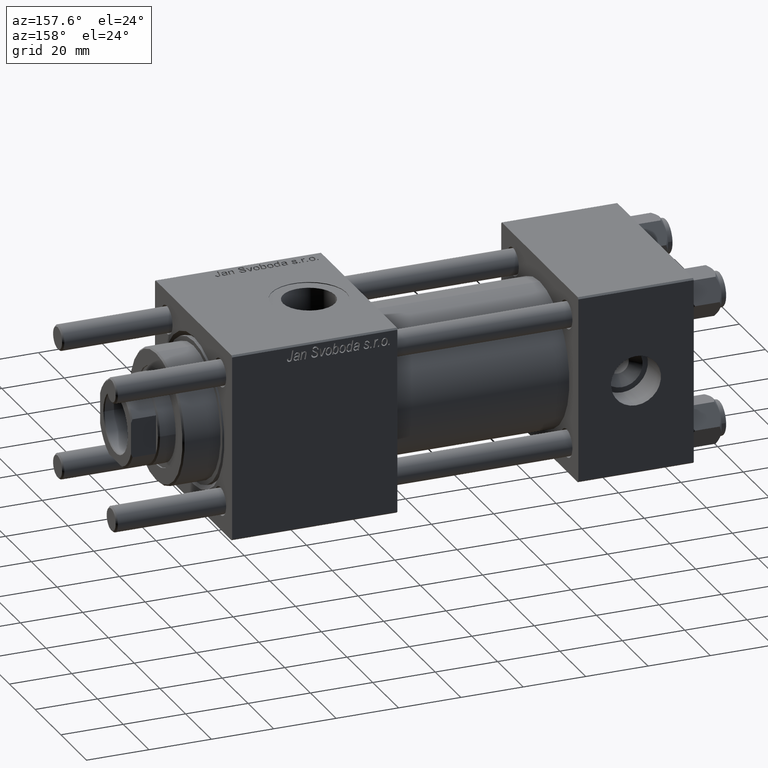
[diagram: clean part render]
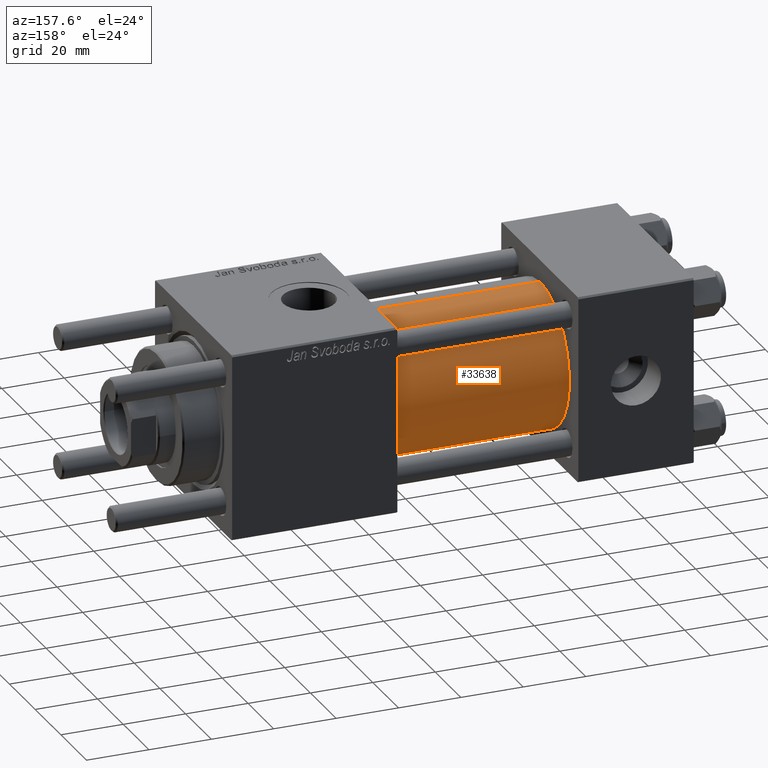
[diagram: same view with one face highlighted and labeled with its STEP entity id]
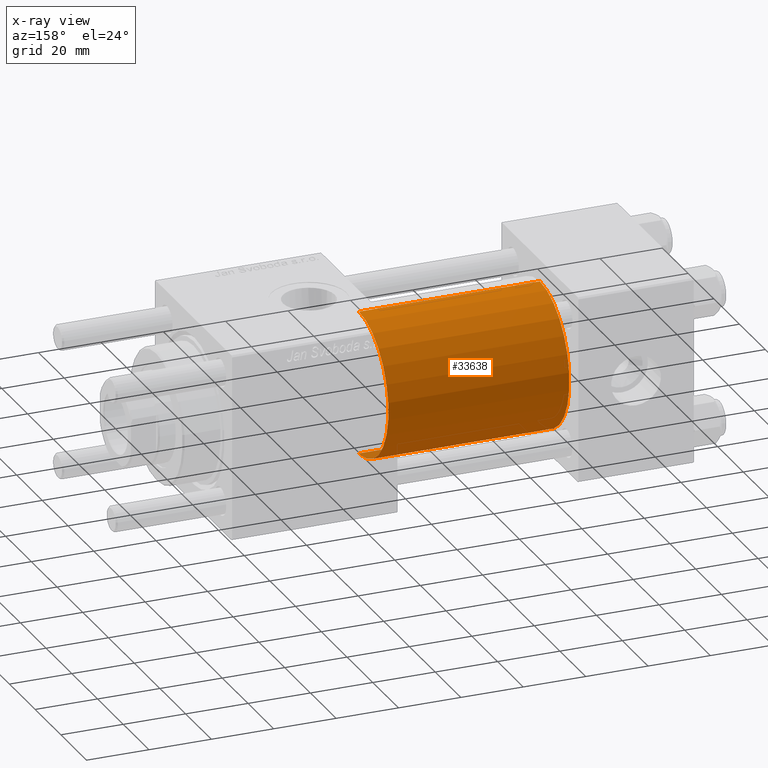
[diagram: x-ray of the same camera — body ghosted, the highlighted face saturated]
A machine part, auxiliary view. The second image highlights one B-rep face of the part: STEP entity #33638.
The next image is the same camera in x-ray: the body ghosted, the highlighted face saturated — about 0% of this face is hidden behind the body in this view.
In plain terms, the highlighted cylindrical surface (partial cylindrical patch) has radius 23 mm, axis along (-1, -0, -0).
Its self-contained STEP definition (entity closure, byte-faithful):
#918 = VERTEX_POINT ( 'NONE', #57165 ) ;
#1982 = VERTEX_POINT ( 'NONE', #16419 ) ;
#2223 = EDGE_CURVE ( 'NONE', #918, #1982, #49312, .T. ) ;
#6777 = CARTESIAN_POINT ( 'NONE',  ( 95.00000000000000000, -2.602085213965210642E-15, 0.000000000000000000 ) ) ;
#7200 = CIRCLE ( 'NONE', #28154, 23.00000000000000000 ) ;
#7484 = VERTEX_POINT ( 'NONE', #31029 ) ;
#11144 = DIRECTION ( 'NONE',  ( -1.000000000000000000, -0.000000000000000000, -0.000000000000000000 ) ) ;
#13088 = VERTEX_POINT ( 'NONE', #50799 ) ;
#15423 = AXIS2_PLACEMENT_3D ( 'NONE', #6777, #20183, #15999 ) ;
#15999 = DIRECTION ( 'NONE',  ( 0.000000000000000000, 0.000000000000000000, 1.000000000000000000 ) ) ;
#16419 = CARTESIAN_POINT ( 'NONE',  ( 37.00000000000000000, -2.602085213965210642E-15, 23.00000000000000000 ) ) ;
#17366 = ORIENTED_EDGE ( 'NONE', *, *, #36380, .T. ) ;
#20183 = DIRECTION ( 'NONE',  ( -1.000000000000000000, -0.000000000000000000, -0.000000000000000000 ) ) ;
#21997 = CARTESIAN_POINT ( 'NONE',  ( 37.00000000000000000, -2.602085213965210642E-15, 0.000000000000000000 ) ) ;
#26460 = DIRECTION ( 'NONE',  ( 0.000000000000000000, 0.000000000000000000, 1.000000000000000000 ) ) ;
#27291 = ORIENTED_EDGE ( 'NONE', *, *, #57952, .F. ) ;
#28154 = AXIS2_PLACEMENT_3D ( 'NONE', #31855, #35129, #53319 ) ;
#30056 = DIRECTION ( 'NONE',  ( 1.000000000000000000, -0.000000000000000000, 0.000000000000000000 ) ) ;
#30179 = CARTESIAN_POINT ( 'NONE',  ( 95.00000000000000000, 2.146024240737012665E-16, -23.00000000000000000 ) ) ;
#31029 = CARTESIAN_POINT ( 'NONE',  ( 95.00000000000000000, -2.602085213965210642E-15, 23.00000000000000000 ) ) ;
#31855 = CARTESIAN_POINT ( 'NONE',  ( 95.00000000000000000, -2.602085213965210642E-15, 0.000000000000000000 ) ) ;
#33638 = ADVANCED_FACE ( 'NONE', ( #46992 ), #38915, .T. ) ;
#34483 = VECTOR ( 'NONE', #11144, 1000.000000000000000 ) ;
#35129 = DIRECTION ( 'NONE',  ( 1.000000000000000000, 0.000000000000000000, 0.000000000000000000 ) ) ;
#36380 = EDGE_CURVE ( 'NONE', #13088, #918, #43581, .T. ) ;
#38915 = CYLINDRICAL_SURFACE ( 'NONE', #15423, 23.00000000000000000 ) ;
#40710 = AXIS2_PLACEMENT_3D ( 'NONE', #21997, #30056, #26460 ) ;
#43460 = LINE ( 'NONE', #47360, #45089 ) ;
#43581 = LINE ( 'NONE', #30179, #34483 ) ;
#44613 = ORIENTED_EDGE ( 'NONE', *, *, #48006, .F. ) ;
#45089 = VECTOR ( 'NONE', #52122, 1000.000000000000000 ) ;
#46992 = FACE_OUTER_BOUND ( 'NONE', #48596, .T. ) ;
#47360 = CARTESIAN_POINT ( 'NONE',  ( 95.00000000000000000, -2.602085213965210642E-15, 23.00000000000000000 ) ) ;
#48006 = EDGE_CURVE ( 'NONE', #7484, #1982, #43460, .T. ) ;
#48596 = EDGE_LOOP ( 'NONE', ( #27291, #17366, #55173, #44613 ) ) ;
#49312 = CIRCLE ( 'NONE', #40710, 23.00000000000000000 ) ;
#50799 = CARTESIAN_POINT ( 'NONE',  ( 95.00000000000000000, 2.146024240737012665E-16, -23.00000000000000000 ) ) ;
#52122 = DIRECTION ( 'NONE',  ( -1.000000000000000000, -0.000000000000000000, -0.000000000000000000 ) ) ;
#53319 = DIRECTION ( 'NONE',  ( 0.000000000000000000, 0.000000000000000000, -1.000000000000000000 ) ) ;
#55173 = ORIENTED_EDGE ( 'NONE', *, *, #2223, .T. ) ;
#57165 = CARTESIAN_POINT ( 'NONE',  ( 37.00000000000000000, 2.146024240737012665E-16, -23.00000000000000000 ) ) ;
#57952 = EDGE_CURVE ( 'NONE', #13088, #7484, #7200, .T. ) ;